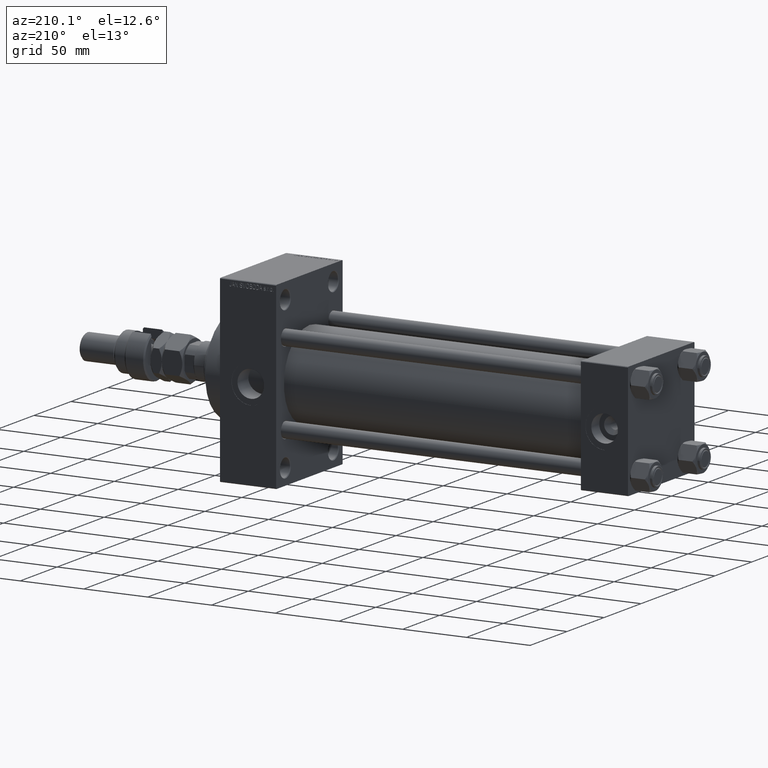
[diagram: clean part render]
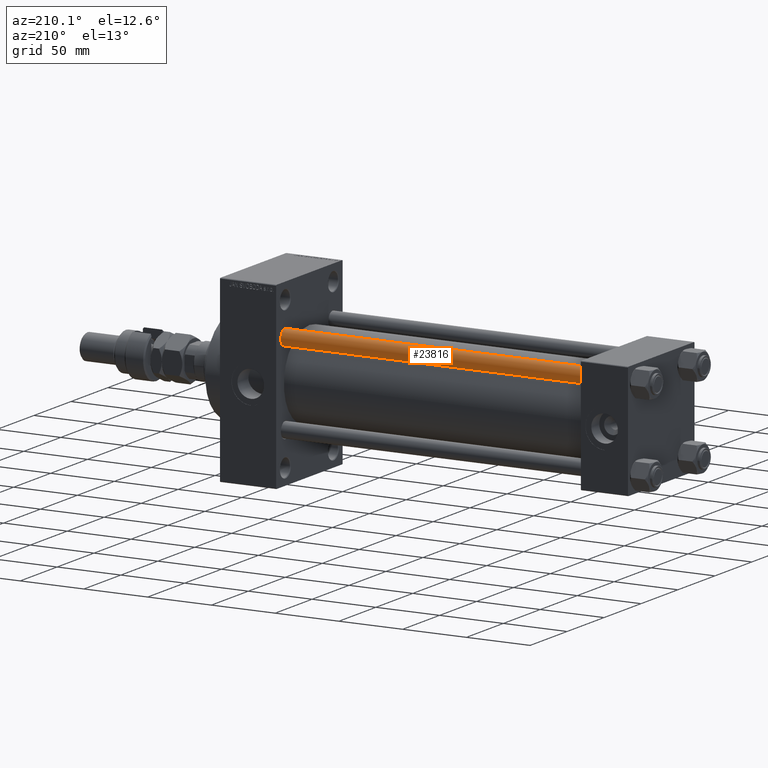
[diagram: same view with one face highlighted and labeled with its STEP entity id]
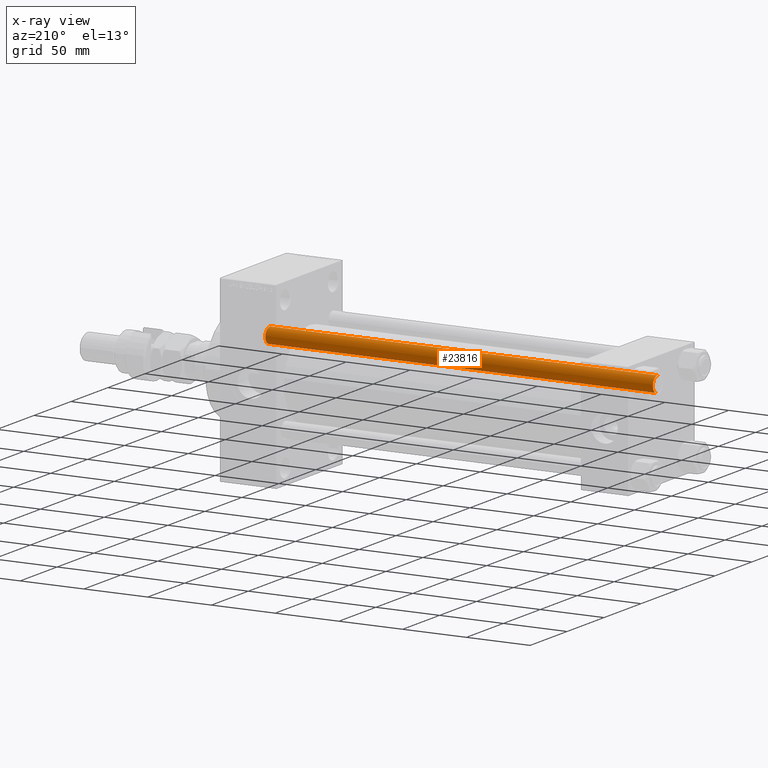
[diagram: x-ray of the same camera — body ghosted, the highlighted face saturated]
A machine part, auxiliary view. The second image highlights one B-rep face of the part: STEP entity #23816.
The next image is the same camera in x-ray: the body ghosted, the highlighted face saturated — about 0% of this face is hidden behind the body in this view.
In plain terms, the highlighted cylindrical surface (edge-blend (fillet) strip) has radius 6 mm, axis along (-1, -0, 0).
Its self-contained STEP definition (entity closure, byte-faithful):
#201 = EDGE_LOOP ( 'NONE', ( #5443, #42107, #18013, #38277 ) ) ;
#382 = DIRECTION ( 'NONE',  ( -0.000000000000000000, -0.000000000000000000, -1.000000000000000000 ) ) ;
#1060 = CARTESIAN_POINT ( 'NONE',  ( -6.000000000000000888, 0.000000000000000000, 304.5000000000000000 ) ) ;
#1407 = CIRCLE ( 'NONE', #28041, 6.000000000000000888 ) ;
#1924 = DIRECTION ( 'NONE',  ( 0.000000000000000000, 0.000000000000000000, -1.000000000000000000 ) ) ;
#3107 = EDGE_CURVE ( 'NONE', #6228, #10237, #3944, .T. ) ;
#3490 = DIRECTION ( 'NONE',  ( -0.000000000000000000, -0.000000000000000000, -1.000000000000000000 ) ) ;
#3944 = LINE ( 'NONE', #39117, #28793 ) ;
#4133 = DIRECTION ( 'NONE',  ( -0.000000000000000000, -0.000000000000000000, 1.000000000000000000 ) ) ;
#4628 = AXIS2_PLACEMENT_3D ( 'NONE', #48483, #1924, #33037 ) ;
#5443 = ORIENTED_EDGE ( 'NONE', *, *, #22503, .T. ) ;
#6228 = VERTEX_POINT ( 'NONE', #37129 ) ;
#10237 = VERTEX_POINT ( 'NONE', #14074 ) ;
#14074 = CARTESIAN_POINT ( 'NONE',  ( 6.000000000000000888, 7.347880794884120722E-16, 0.5000000000000004441 ) ) ;
#14193 = DIRECTION ( 'NONE',  ( -0.000000000000000000, -0.000000000000000000, -1.000000000000000000 ) ) ;
#16497 = CARTESIAN_POINT ( 'NONE',  ( 0.000000000000000000, 0.000000000000000000, 0.5000000000000004441 ) ) ;
#18013 = ORIENTED_EDGE ( 'NONE', *, *, #26155, .T. ) ;
#18898 = CARTESIAN_POINT ( 'NONE',  ( 0.000000000000000000, 0.000000000000000000, 305.0000000000000000 ) ) ;
#21963 = FACE_OUTER_BOUND ( 'NONE', #201, .T. ) ;
#22503 = EDGE_CURVE ( 'NONE', #48437, #6228, #36934, .T. ) ;
#23816 = ADVANCED_FACE ( 'NONE', ( #21963 ), #29322, .T. ) ;
#25826 = LINE ( 'NONE', #41055, #40228 ) ;
#26155 = EDGE_CURVE ( 'NONE', #10237, #26997, #1407, .T. ) ;
#26377 = EDGE_CURVE ( 'NONE', #48437, #26997, #25826, .T. ) ;
#26997 = VERTEX_POINT ( 'NONE', #41186 ) ;
#28041 = AXIS2_PLACEMENT_3D ( 'NONE', #16497, #4133, #46401 ) ;
#28793 = VECTOR ( 'NONE', #382, 1000.000000000000000 ) ;
#29322 = CYLINDRICAL_SURFACE ( 'NONE', #29571, 6.000000000000000888 ) ;
#29571 = AXIS2_PLACEMENT_3D ( 'NONE', #18898, #3490, #33853 ) ;
#33037 = DIRECTION ( 'NONE',  ( 1.000000000000000000, 0.000000000000000000, 0.000000000000000000 ) ) ;
#33853 = DIRECTION ( 'NONE',  ( -1.000000000000000000, 0.000000000000000000, 0.000000000000000000 ) ) ;
#36934 = CIRCLE ( 'NONE', #4628, 6.000000000000000888 ) ;
#37129 = CARTESIAN_POINT ( 'NONE',  ( 6.000000000000000888, 7.347880794884120722E-16, 304.5000000000000000 ) ) ;
#38277 = ORIENTED_EDGE ( 'NONE', *, *, #26377, .F. ) ;
#39117 = CARTESIAN_POINT ( 'NONE',  ( 6.000000000000000888, 7.347880794884120722E-16, 305.0000000000000000 ) ) ;
#40228 = VECTOR ( 'NONE', #14193, 1000.000000000000000 ) ;
#41055 = CARTESIAN_POINT ( 'NONE',  ( -6.000000000000000888, 0.000000000000000000, 305.0000000000000000 ) ) ;
#41186 = CARTESIAN_POINT ( 'NONE',  ( -6.000000000000000888, 0.000000000000000000, 0.5000000000000004441 ) ) ;
#42107 = ORIENTED_EDGE ( 'NONE', *, *, #3107, .T. ) ;
#46401 = DIRECTION ( 'NONE',  ( 1.000000000000000000, 0.000000000000000000, 0.000000000000000000 ) ) ;
#48437 = VERTEX_POINT ( 'NONE', #1060 ) ;
#48483 = CARTESIAN_POINT ( 'NONE',  ( 0.000000000000000000, 0.000000000000000000, 304.5000000000000000 ) ) ;